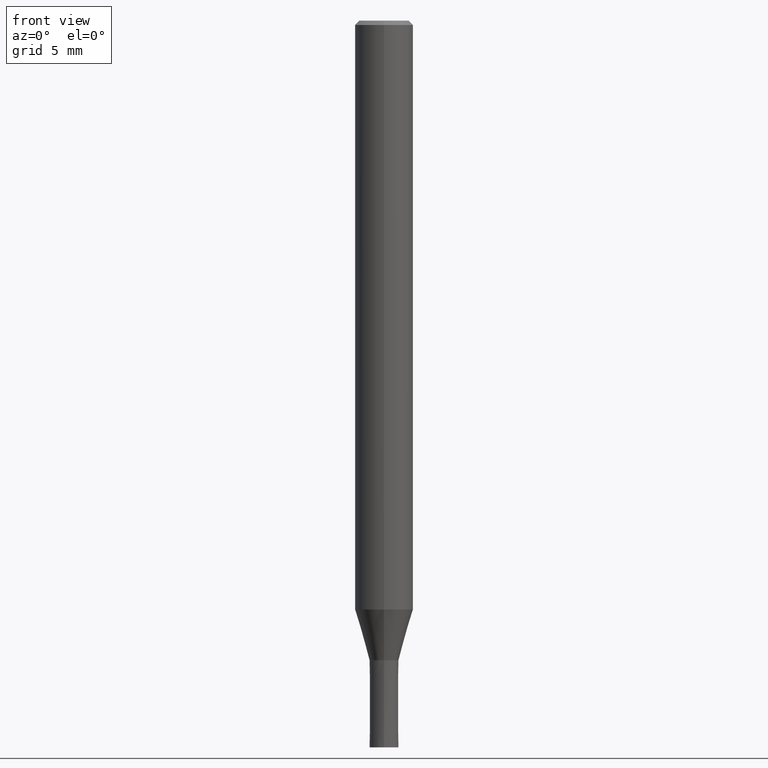
[diagram: clean part render]
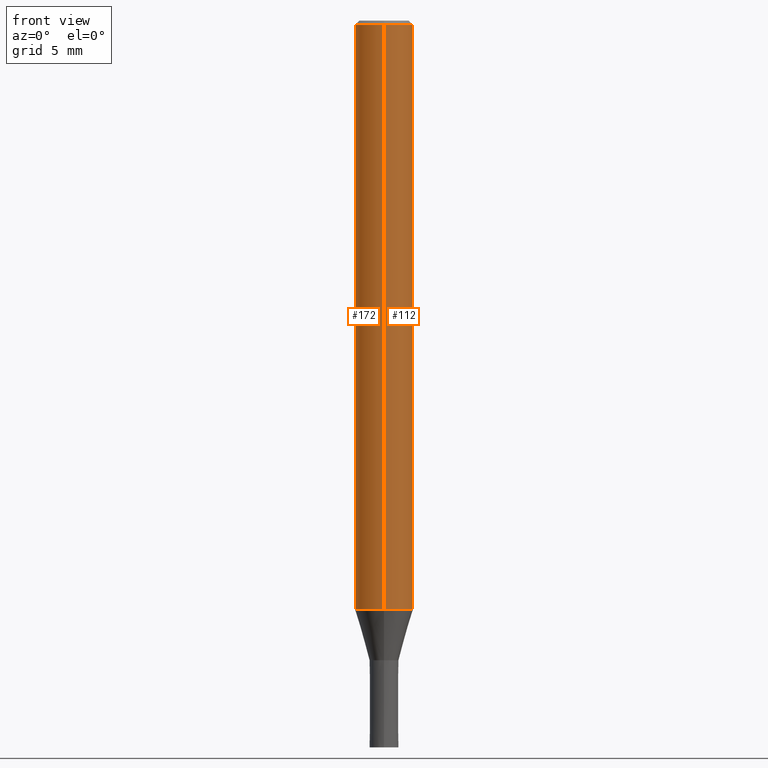
[diagram: same view with one multi-face feature highlighted, each face labeled with its STEP entity id]
A machine part, front view. The highlighted faces form ONE feature: a constant-radius fillet chain: 2 tangent blend faces with common blend radius 2 mm. The faces share edges in the B-rep.
Their STEP definitions:
[1] entity #172 (Cylinder):
#86=EDGE_CURVE('',#146,#142,#208,.T.);
#92=EDGE_CURVE('',#142,#140,#215,.T.);
#108=VERTEX_POINT('',#234);
#120=EDGE_CURVE('',#140,#108,#247,.T.);
#140=VERTEX_POINT('',#267);
#142=VERTEX_POINT('',#269);
#146=VERTEX_POINT('',#273);
#172=ADVANCED_FACE('',(#302),#303,.T.);
#178=EDGE_CURVE('',#146,#108,#311,.T.);
#208=LINE('',#336,#337);
#215=CIRCLE('',#346,2.0);
#234=CARTESIAN_POINT('',(0.0,2.0,-40.513));
#247=LINE('',#383,#384);
#267=CARTESIAN_POINT('',(0.0,2.0,-0.299999999999997));
#269=CARTESIAN_POINT('',(2.44921270764475E-016,-2.0,-0.299999999999997));
#273=CARTESIAN_POINT('',(2.44921270764475E-016,-2.0,-40.513));
#302=FACE_OUTER_BOUND('',#455,.T.);
#303=CYLINDRICAL_SURFACE('',#456,2.0);
#311=CIRCLE('',#464,2.0);
#336=CARTESIAN_POINT('',(2.44921270764475E-016,-2.0,-20.4065));
#337=VECTOR('',#482,1.0);
#346=AXIS2_PLACEMENT_3D('',#494,#495,#496);
#383=CARTESIAN_POINT('',(-2.44921270764475E-016,2.0,-20.4065));
#384=VECTOR('',#532,1.0);
#455=EDGE_LOOP('',(#590,#591,#592,#593));
#456=AXIS2_PLACEMENT_3D('',#594,#595,#596);
#464=AXIS2_PLACEMENT_3D('',#606,#607,#608);
#482=DIRECTION('',(-0.0,-0.0,1.0));
#494=CARTESIAN_POINT('',(0.0,0.0,-0.299999999999997));
#495=DIRECTION('',(0.0,0.0,-1.0));
#496=DIRECTION('',(0.0,1.0,0.0));
#532=DIRECTION('',(0.0,0.0,-1.0));
#590=ORIENTED_EDGE('',*,*,#120,.T.);
#591=ORIENTED_EDGE('',*,*,#178,.F.);
#592=ORIENTED_EDGE('',*,*,#86,.T.);
#593=ORIENTED_EDGE('',*,*,#92,.T.);
#594=CARTESIAN_POINT('',(0.0,0.0,-20.4065));
#595=DIRECTION('',(-0.0,-0.0,1.0));
#596=DIRECTION('',(0.0,1.0,0.0));
#606=CARTESIAN_POINT('',(0.0,0.0,-40.513));
#607=DIRECTION('',(0.0,0.0,-1.0));
#608=DIRECTION('',(0.0,1.0,0.0));
[2] entity #112 (Cylinder):
#86=EDGE_CURVE('',#146,#142,#208,.T.);
#100=EDGE_CURVE('',#140,#142,#224,.T.);
#108=VERTEX_POINT('',#234);
#112=ADVANCED_FACE('',(#238),#239,.T.);
#120=EDGE_CURVE('',#140,#108,#247,.T.);
#122=EDGE_CURVE('',#108,#146,#249,.T.);
#140=VERTEX_POINT('',#267);
#142=VERTEX_POINT('',#269);
#146=VERTEX_POINT('',#273);
#208=LINE('',#336,#337);
#224=CIRCLE('',#358,2.0);
#234=CARTESIAN_POINT('',(0.0,2.0,-40.513));
#238=FACE_OUTER_BOUND('',#373,.T.);
#239=CYLINDRICAL_SURFACE('',#374,2.0);
#247=LINE('',#383,#384);
#249=CIRCLE('',#387,2.0);
#267=CARTESIAN_POINT('',(0.0,2.0,-0.299999999999997));
#269=CARTESIAN_POINT('',(2.44921270764475E-016,-2.0,-0.299999999999997));
#273=CARTESIAN_POINT('',(2.44921270764475E-016,-2.0,-40.513));
#336=CARTESIAN_POINT('',(2.44921270764475E-016,-2.0,-20.4065));
#337=VECTOR('',#482,1.0);
#358=AXIS2_PLACEMENT_3D('',#504,#505,#506);
#373=EDGE_LOOP('',(#525,#526,#527,#528));
#374=AXIS2_PLACEMENT_3D('',#529,#530,#531);
#383=CARTESIAN_POINT('',(-2.44921270764475E-016,2.0,-20.4065));
#384=VECTOR('',#532,1.0);
#387=AXIS2_PLACEMENT_3D('',#533,#534,#535);
#482=DIRECTION('',(-0.0,-0.0,1.0));
#504=CARTESIAN_POINT('',(0.0,0.0,-0.299999999999997));
#505=DIRECTION('',(0.0,0.0,-1.0));
#506=DIRECTION('',(0.0,1.0,0.0));
#525=ORIENTED_EDGE('',*,*,#120,.F.);
#526=ORIENTED_EDGE('',*,*,#100,.T.);
#527=ORIENTED_EDGE('',*,*,#86,.F.);
#528=ORIENTED_EDGE('',*,*,#122,.F.);
#529=CARTESIAN_POINT('',(0.0,0.0,-20.4065));
#530=DIRECTION('',(-0.0,-0.0,1.0));
#531=DIRECTION('',(0.0,1.0,0.0));
#532=DIRECTION('',(0.0,0.0,-1.0));
#533=CARTESIAN_POINT('',(0.0,0.0,-40.513));
#534=DIRECTION('',(0.0,0.0,-1.0));
#535=DIRECTION('',(0.0,1.0,0.0));